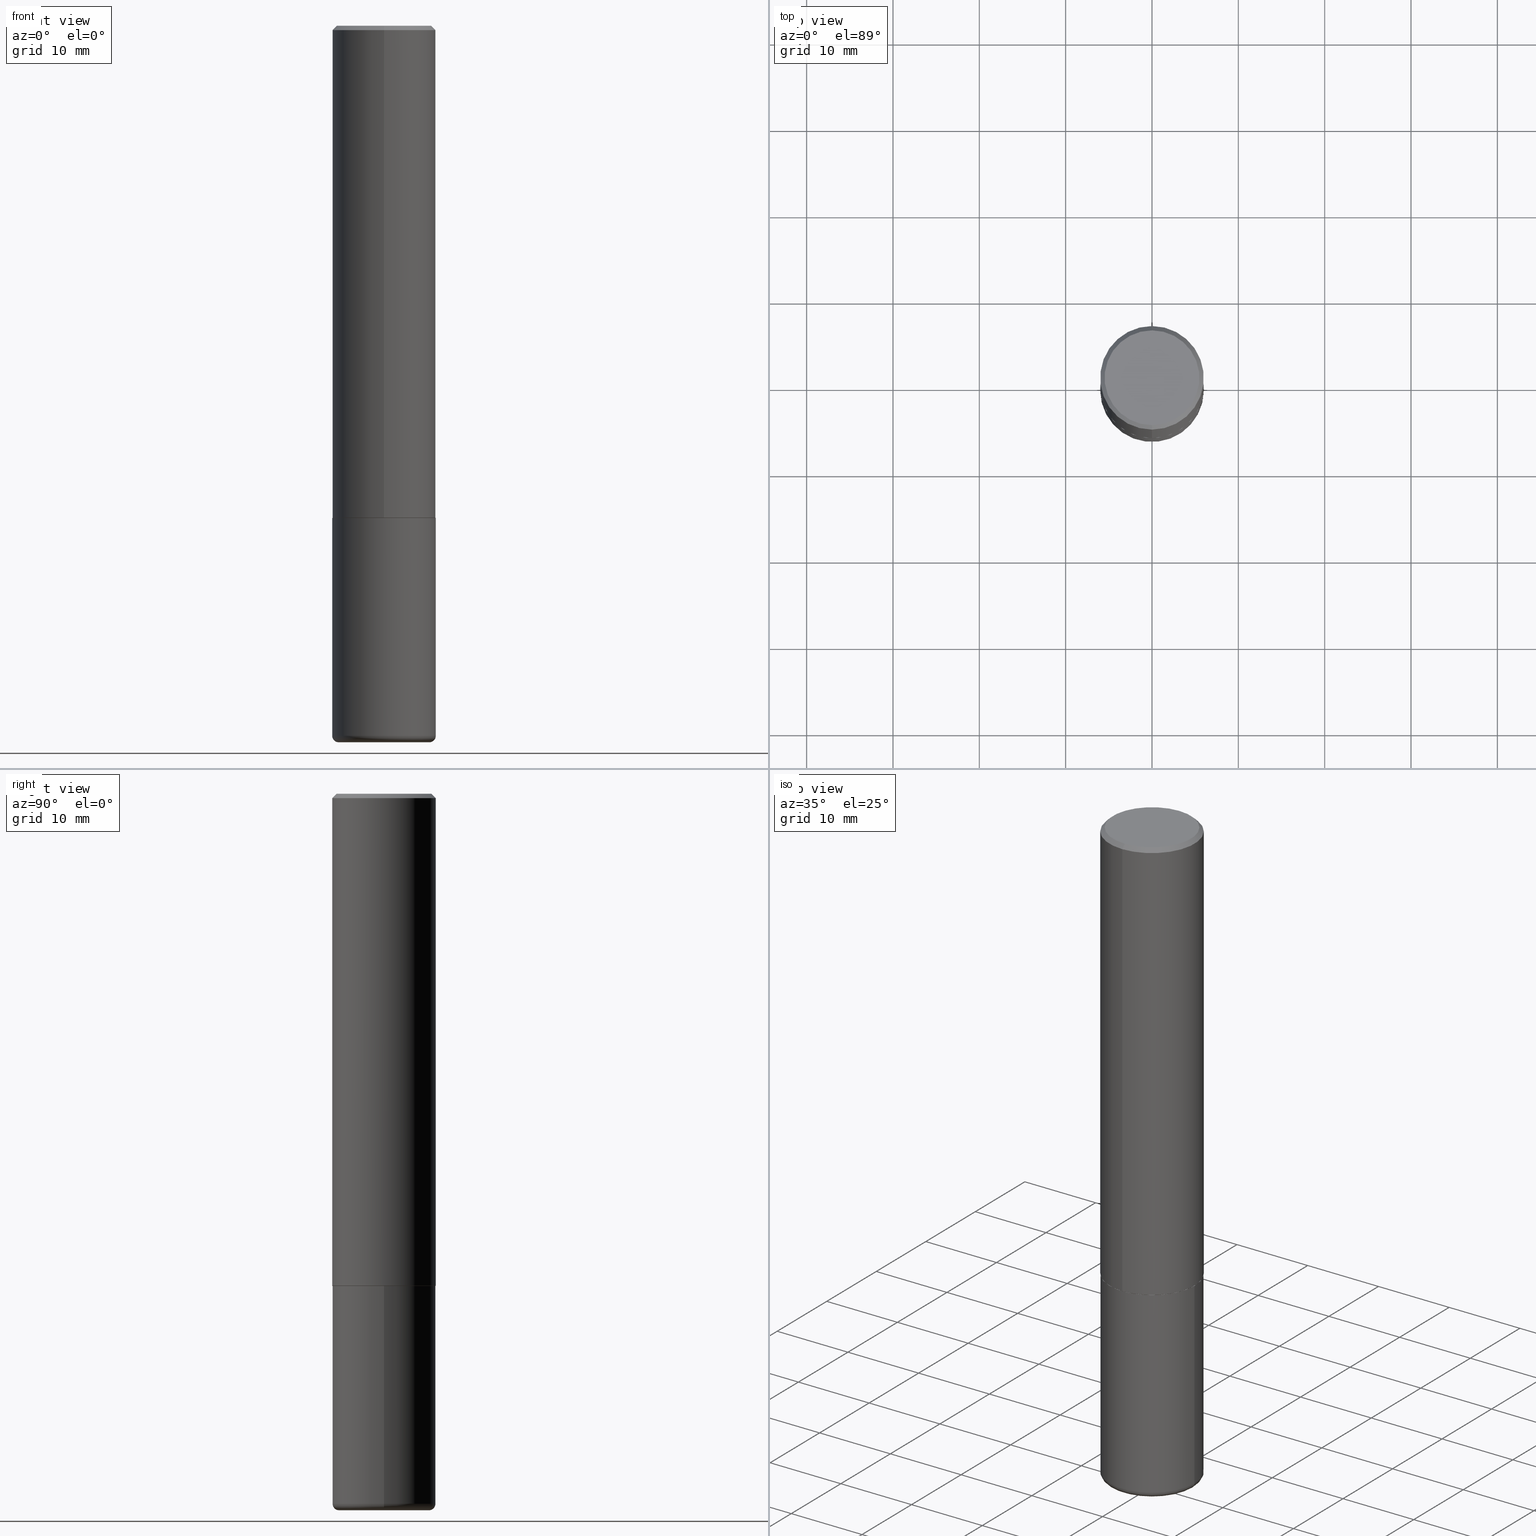
[diagram: canonical four-view strip — front | top / right | iso, engineering-drawing reading convention]
A machine part, canonical four-view strip (front | top / right | iso — engineering-drawing reading convention). The complete STEP part file that produces these views, byte-faithful:
ISO-10303-21;
HEADER;
FILE_DESCRIPTION (( 'STEP AP203' ),
    '1' );
FILE_NAME ('47126.STEP',
    '2024-03-05T21:22:19',
    ( '' ),
    ( '' ),
    'SwSTEP 2.0',
    'SolidWorks 2023',
    '' );
FILE_SCHEMA (( 'CONFIG_CONTROL_DESIGN' ));
ENDSEC;

DATA;
#1 = DIRECTION ( 'NONE',  ( -2.445468806185136877E-29, 3.491481338843145188E-15, 1.000000000000000000 ) ) ;
#2 = DIRECTION ( 'NONE',  ( -6.982962677686265922E-15, -1.000000000000000000, 3.469747663417773058E-15 ) ) ;
#3 = CARTESIAN_POINT ( 'NONE',  ( 0.2361999999999999933, -9.484609056967400443E-15, -2.244100000000000428 ) ) ;
#4 = VECTOR ( 'NONE', #1, 39.37007874015748143 ) ;
#5 = CIRCLE ( 'NONE', #233, 0.2062000000000000222 ) ;
#6 = DIRECTION ( 'NONE',  ( -2.445468806185136597E-29, 3.491481338843145583E-15, 1.000000000000000000 ) ) ;
#7 = DIRECTION ( 'NONE',  ( -1.000000000000000000, 6.982962677686265922E-15, -4.876176775795935793E-29 ) ) ;
#8 = DIRECTION ( 'NONE',  ( -2.445221809746291958E-29, 3.491835051801734702E-15, 1.000000000000000000 ) ) ;
#9 = AXIS2_PLACEMENT_3D ( 'NONE', #154, #123, #413 ) ;
#10 = DIRECTION ( 'NONE',  ( 1.000000000000000000, -6.982962677686265922E-15, 4.883557194083112340E-29 ) ) ;
#11 = CC_DESIGN_PERSON_AND_ORGANIZATION_ASSIGNMENT ( #311, #344, ( #203 ) ) ;
#12 = ORIENTED_EDGE ( 'NONE', *, *, #24, .T. ) ;
#13 = DIRECTION ( 'NONE',  ( -2.445221809746292518E-29, 3.491835051801734308E-15, 1.000000000000000000 ) ) ;
#14 = AXIS2_PLACEMENT_3D ( 'NONE', #321, #133, #96 ) ;
#15 = DIRECTION ( 'NONE',  ( -2.445468806185136597E-29, 3.491481338843145583E-15, 1.000000000000000000 ) ) ;
#16 = AXIS2_PLACEMENT_3D ( 'NONE', #51, #235, #205 ) ;
#17 = ORIENTED_EDGE ( 'NONE', *, *, #182, .F. ) ;
#18 = APPLICATION_CONTEXT ( 'configuration controlled 3d designs of mechanical parts and assemblies' ) ;
#19 = LINE ( 'NONE', #238, #417 ) ;
#20 = PRODUCT_RELATED_PRODUCT_CATEGORY ( 'detail', '', ( #237 ) ) ;
#21 = ORIENTED_EDGE ( 'NONE', *, *, #30, .T. ) ;
#22 = DATE_AND_TIME ( #187, #99 ) ;
#23 = CARTESIAN_POINT ( 'NONE',  ( 7.917694353785617077E-29, -1.130436913077245307E-14, -3.237700000000000244 ) ) ;
#24 = EDGE_CURVE ( 'NONE', #84, #252, #67, .T. ) ;
#25 = AXIS2_PLACEMENT_3D ( 'NONE', #145, #336, #334 ) ;
#26 = ORIENTED_EDGE ( 'NONE', *, *, #30, .F. ) ;
#27 = APPROVAL ( #90, 'UNSPECIFIED' ) ;
#28 =( NAMED_UNIT ( * ) PLANE_ANGLE_UNIT ( ) SI_UNIT ( $, .RADIAN. ) );
#29 = VERTEX_POINT ( 'NONE', #157 ) ;
#30 = EDGE_CURVE ( 'NONE', #84, #211, #381, .T. ) ;
#31 = DIRECTION ( 'NONE',  ( 1.000000000000000000, 0.000000000000000000, 0.000000000000000000 ) ) ;
#32 = DIRECTION ( 'NONE',  ( 1.000000000000000000, -6.982962677686262766E-15, 0.000000000000000000 ) ) ;
#33 = EDGE_CURVE ( 'NONE', #127, #252, #178, .T. ) ;
#34 = EDGE_LOOP ( 'NONE', ( #46, #400 ) ) ;
#35 = CC_DESIGN_APPROVAL ( #95, ( #395 ) ) ;
#36 = PERSON ( 'UNSPECIFIED', 'UNSPECIFIED', 'UNSPECIFIED', ('UNSPECIFIED'), ('UNSPECIFIED'), ('UNSPECIFIED') ) ;
#37 = DIRECTION ( 'NONE',  ( -2.445221809746292518E-29, 3.491835051801734308E-15, 1.000000000000000000 ) ) ;
#38 = DIRECTION ( 'NONE',  ( -2.445221809746292518E-29, 3.491835051801734308E-15, 1.000000000000000000 ) ) ;
#39 = CARTESIAN_POINT ( 'NONE',  ( 1.649375784469496920E-15, 0.2361999999999999933, -0.02000000000000087472 ) ) ;
#40 = CARTESIAN_POINT ( 'NONE',  ( -1.642392821791754699E-15, -0.2352000000000078195, -2.244099999999999095 ) ) ;
#41 = DIRECTION ( 'NONE',  ( -4.937700262165728178E-15, -0.7071067811867141062, 0.7071067811863809283 ) ) ;
#42 = DIRECTION ( 'NONE',  ( 6.982962677686265922E-15, 1.000000000000000000, -3.487819265831410167E-15 ) ) ;
#43 = EDGE_CURVE ( 'NONE', #29, #86, #322, .T. ) ;
#44 = LOCAL_TIME ( 16, 22, 19.00000000000000000, #132 ) ;
#45 = CYLINDRICAL_SURFACE ( 'NONE', #25, 0.2362000000000001598 ) ;
#46 = ORIENTED_EDGE ( 'NONE', *, *, #151, .T. ) ;
#47 = CYLINDRICAL_SURFACE ( 'NONE', #226, 0.2361999999999999933 ) ;
#48 = EDGE_LOOP ( 'NONE', ( #166, #62, #312, #146 ) ) ;
#49 = DIRECTION ( 'NONE',  ( -6.982962677686265133E-15, -1.000000000000000000, 3.484499991918703113E-15 ) ) ;
#50 = CIRCLE ( 'NONE', #201, 0.2351999999999999924 ) ;
#51 = CARTESIAN_POINT ( 'NONE',  ( 1.509716530915770323E-15, 0.2161999999999999478, -7.122113769277070896E-16 ) ) ;
#52 = EDGE_LOOP ( 'NONE', ( #236, #402, #190, #386 ) ) ;
#53 = APPROVAL_ROLE ( '' ) ;
#54 = PERSON_AND_ORGANIZATION_ROLE ( 'classification_officer' ) ;
#55 = ORIENTED_EDGE ( 'NONE', *, *, #293, .F. ) ;
#56 = CC_DESIGN_PERSON_AND_ORGANIZATION_ASSIGNMENT ( #289, #54, ( #395 ) ) ;
#57 = DATE_AND_TIME ( #282, #78 ) ;
#58 = CIRCLE ( 'NONE', #300, 0.2161999999999999478 ) ;
#59 = AXIS2_PLACEMENT_3D ( 'NONE', #75, #262, #228 ) ;
#60 = CARTESIAN_POINT ( 'NONE',  ( -1.620449627073635473E-15, -0.2362000000000001321, -0.01999999999999922673 ) ) ;
#61 = PERSON_AND_ORGANIZATION_ROLE ( 'creator' ) ;
#62 = ORIENTED_EDGE ( 'NONE', *, *, #167, .T. ) ;
#63 = EDGE_CURVE ( 'NONE', #314, #278, #189, .T. ) ;
#64 = PERSON_AND_ORGANIZATION ( #36, #129 ) ;
#65 = ORIENTED_EDGE ( 'NONE', *, *, #385, .T. ) ;
#66 = DIRECTION ( 'NONE',  ( -2.445221809746292518E-29, 3.491835051801734308E-15, 1.000000000000000000 ) ) ;
#67 = CIRCLE ( 'NONE', #9, 0.2361999999999999655 ) ;
#68 = AXIS2_PLACEMENT_3D ( 'NONE', #274, #363, #49 ) ;
#69 = DIRECTION ( 'NONE',  ( 2.438088387897960049E-29, -3.491481338843145188E-15, -1.000000000000000000 ) ) ;
#70 = EDGE_CURVE ( 'NONE', #94, #88, #58, .T. ) ;
#71 = CARTESIAN_POINT ( 'NONE',  ( -1.649375784469497117E-15, -0.2362000000000001598, 8.247714392355702416E-16 ) ) ;
#72 = PLANE ( 'NONE',  #120 ) ;
#73 = AXIS2_PLACEMENT_3D ( 'NONE', #244, #113, #42 ) ;
#74 = DIRECTION ( 'NONE',  ( -2.445221809746292518E-29, 3.491835051801734308E-15, 1.000000000000000000 ) ) ;
#75 = CARTESIAN_POINT ( 'NONE',  ( 0.000000000000000000, 0.000000000000000000, 0.000000000000000000 ) ) ;
#76 = FACE_OUTER_BOUND ( 'NONE', #34, .T. ) ;
#77 = CLOSED_SHELL ( 'NONE', ( #372, #352, #324, #193, #230, #338, #100, #382 ) ) ;
#78 = LOCAL_TIME ( 16, 22, 19.00000000000000000, #258 ) ;
#79 = DIRECTION ( 'NONE',  ( 1.000000000000000000, -6.982962677686269077E-15, 0.000000000000000000 ) ) ;
#80 = ORIENTED_EDGE ( 'NONE', *, *, #114, .F. ) ;
#81 = EDGE_CURVE ( 'NONE', #252, #84, #104, .T. ) ;
#82 = FACE_OUTER_BOUND ( 'NONE', #283, .T. ) ;
#83 = CARTESIAN_POINT ( 'NONE',  ( -1.620449627073635473E-15, -0.2362000000000001321, -0.01999999999999922673 ) ) ;
#84 = VERTEX_POINT ( 'NONE', #347 ) ;
#85 = DATE_AND_TIME ( #248, #44 ) ;
#86 = VERTEX_POINT ( 'NONE', #60 ) ;
#87 = DATE_TIME_ROLE ( 'classification_date' ) ;
#88 = VERTEX_POINT ( 'NONE', #192 ) ;
#89 = DIRECTION ( 'NONE',  ( -6.982962677686265133E-15, -1.000000000000000000, 3.484499991918703113E-15 ) ) ;
#90 = APPROVAL_STATUS ( 'not_yet_approved' ) ;
#91 = CONICAL_SURFACE ( 'NONE', #327, 0.2362000000000000766, 0.7853981633974480570 ) ;
#92 = ORIENTED_EDGE ( 'NONE', *, *, #293, .T. ) ;
#93 = APPROVAL_DATE_TIME ( #57, #27 ) ;
#94 = VERTEX_POINT ( 'NONE', #378 ) ;
#95 = APPROVAL ( #342, 'UNSPECIFIED' ) ;
#96 = DIRECTION ( 'NONE',  ( 1.000000000000000000, -6.982962677686279332E-15, 0.000000000000000000 ) ) ;
#97 = EDGE_CURVE ( 'NONE', #127, #343, #407, .T. ) ;
#98 = DIRECTION ( 'NONE',  ( -6.982962677686265922E-15, -1.000000000000000000, 3.469747663417773058E-15 ) ) ;
#99 = LOCAL_TIME ( 16, 22, 19.00000000000000000, #216 ) ;
#100 = ADVANCED_FACE ( 'NONE', ( #130 ), #72, .F. ) ;
#101 = CARTESIAN_POINT ( 'NONE',  ( -2.089361895350857775E-45, 2.983658608395124733E-31, 8.544672254365514246E-17 ) ) ;
#102 = DIRECTION ( 'NONE',  ( 1.000000000000000000, -6.982962677686269077E-15, 0.000000000000000000 ) ) ;
#103 = DIRECTION ( 'NONE',  ( 4.937700262164546464E-15, 0.7071067811865449082, -0.7071067811865501263 ) ) ;
#104 = CIRCLE ( 'NONE', #294, 0.2361999999999999655 ) ;
#105 = EDGE_CURVE ( 'NONE', #314, #188, #204, .T. ) ;
#106 = AXIS2_PLACEMENT_3D ( 'NONE', #227, #358, #102 ) ;
#107 = DIRECTION ( 'NONE',  ( 2.445221809746292518E-29, -3.491835051801734308E-15, -1.000000000000000000 ) ) ;
#108 = LENGTH_MEASURE_WITH_UNIT ( LENGTH_MEASURE( 0.02539999999999999897 ), #267 );
#109 = LINE ( 'NONE', #83, #360 ) ;
#110 = ORIENTED_EDGE ( 'NONE', *, *, #134, .T. ) ;
#111 = VECTOR ( 'NONE', #103, 39.37007874015748143 ) ;
#112 = CC_DESIGN_APPROVAL ( #27, ( #203 ) ) ;
#113 = DIRECTION ( 'NONE',  ( 2.445221809746292518E-29, -3.491835051801734308E-15, -1.000000000000000000 ) ) ;
#114 = EDGE_CURVE ( 'NONE', #278, #314, #50, .T. ) ;
#115 = EDGE_LOOP ( 'NONE', ( #125, #21, #310, #364 ) ) ;
#116 = DIRECTION ( 'NONE',  ( 5.024295867789263036E-15, 0.7071067811867189912, 0.7071067811863760433 ) ) ;
#117 = ORIENTED_EDGE ( 'NONE', *, *, #177, .F. ) ;
#118 = DIRECTION ( 'NONE',  ( -4.851104656540962697E-15, -0.7071067811865497932, -0.7071067811865452413 ) ) ;
#119 = ADVANCED_BREP_SHAPE_REPRESENTATION ( '47126', ( #280, #281, #332 ), #301 ) ;
#120 = AXIS2_PLACEMENT_3D ( 'NONE', #326, #8, #391 ) ;
#121 = APPROVAL_ROLE ( '' ) ;
#122 = AXIS2_PLACEMENT_3D ( 'NONE', #399, #208, #210 ) ;
#123 = DIRECTION ( 'NONE',  ( -2.445468806185136597E-29, 3.491481338843145583E-15, 1.000000000000000000 ) ) ;
#124 = DATE_AND_TIME ( #153, #139 ) ;
#125 = ORIENTED_EDGE ( 'NONE', *, *, #81, .T. ) ;
#126 = COORDINATED_UNIVERSAL_TIME_OFFSET ( 5, 0, .BEHIND. ) ;
#127 = VERTEX_POINT ( 'NONE', #170 ) ;
#128 = DATE_TIME_ROLE ( 'creation_date' ) ;
#129 = ORGANIZATION ( 'UNSPECIFIED', 'UNSPECIFIED', '' ) ;
#130 = FACE_OUTER_BOUND ( 'NONE', #269, .T. ) ;
#131 = CC_DESIGN_PERSON_AND_ORGANIZATION_ASSIGNMENT ( #346, #256, ( #237 ) ) ;
#132 = COORDINATED_UNIVERSAL_TIME_OFFSET ( 5, 0, .BEHIND. ) ;
#133 = DIRECTION ( 'NONE',  ( -6.982962677686266711E-15, -1.000000000000000000, 3.491481338843145583E-15 ) ) ;
#134 = EDGE_CURVE ( 'NONE', #88, #29, #261, .T. ) ;
#135 = PLANE ( 'NONE',  #196 ) ;
#136 = DESIGN_CONTEXT ( 'detailed design', #18, 'design' ) ;
#137 = CYLINDRICAL_SURFACE ( 'NONE', #59, 0.2362000000000001598 ) ;
#138 = CIRCLE ( 'NONE', #266, 0.2362000000000002709 ) ;
#139 = LOCAL_TIME ( 16, 22, 19.00000000000000000, #221 ) ;
#140 = CARTESIAN_POINT ( 'NONE',  ( -0.2361999999999999933, -7.891499259769821311E-15, -2.244100000000000428 ) ) ;
#141 = DIRECTION ( 'NONE',  ( -2.445221809746292518E-29, 3.491835051801734308E-15, 1.000000000000000000 ) ) ;
#142 = CARTESIAN_POINT ( 'NONE',  ( 4.890443619492597157E-31, -6.983670103603485970E-17, -0.02000000000000005246 ) ) ;
#143 = DIRECTION ( 'NONE',  ( -2.445468806185136597E-29, 3.491481338843145583E-15, 1.000000000000000000 ) ) ;
#144 = ORIENTED_EDGE ( 'NONE', *, *, #43, .T. ) ;
#145 = CARTESIAN_POINT ( 'NONE',  ( 0.000000000000000000, 0.000000000000000000, 0.000000000000000000 ) ) ;
#146 = ORIENTED_EDGE ( 'NONE', *, *, #33, .F. ) ;
#147 = EDGE_CURVE ( 'NONE', #340, #188, #287, .T. ) ;
#148 = PLANE ( 'NONE',  #122 ) ;
#149 = EDGE_LOOP ( 'NONE', ( #354, #160 ) ) ;
#150 = DIRECTION ( 'NONE',  ( -2.445468806185136877E-29, 3.491481338843145188E-15, 1.000000000000000000 ) ) ;
#151 = EDGE_CURVE ( 'NONE', #88, #94, #366, .T. ) ;
#152 = DIRECTION ( 'NONE',  ( -2.445221809746292518E-29, 3.491835051801734702E-15, 1.000000000000000000 ) ) ;
#153 = CALENDAR_DATE ( 2024, 5, 3 ) ;
#154 = CARTESIAN_POINT ( 'NONE',  ( 7.917694353785617077E-29, -1.130436913077245307E-14, -3.237700000000000244 ) ) ;
#155 = APPLICATION_PROTOCOL_DEFINITION ( 'international standard', 'config_control_design', 1994, #202 ) ;
#156 = AXIS2_PLACEMENT_3D ( 'NONE', #176, #143, #10 ) ;
#157 = CARTESIAN_POINT ( 'NONE',  ( 1.649375784469496920E-15, 0.2361999999999999933, -0.02000000000000087472 ) ) ;
#158 = ADVANCED_FACE ( 'NONE', ( #200 ), #356, .T. ) ;
#159 = APPROVAL_STATUS ( 'not_yet_approved' ) ;
#160 = ORIENTED_EDGE ( 'NONE', *, *, #379, .F. ) ;
#161 = APPLICATION_PROTOCOL_DEFINITION ( 'international standard', 'config_control_design', 1994, #18 ) ;
#162 = ORIENTED_EDGE ( 'NONE', *, *, #167, .F. ) ;
#163 = PERSON_AND_ORGANIZATION ( #36, #129 ) ;
#164 = AXIS2_PLACEMENT_3D ( 'NONE', #101, #141, #231 ) ;
#165 = CC_DESIGN_APPROVAL ( #319, ( #184 ) ) ;
#166 = ORIENTED_EDGE ( 'NONE', *, *, #97, .T. ) ;
#167 = EDGE_CURVE ( 'NONE', #343, #84, #394, .T. ) ;
#168 = DIRECTION ( 'NONE',  ( -2.445221809746292518E-29, 3.491835051801734308E-15, 1.000000000000000000 ) ) ;
#169 = LINE ( 'NONE', #71, #219 ) ;
#170 = CARTESIAN_POINT ( 'NONE',  ( 0.2062000000000000222, -1.284900047507665465E-14, -3.267700000000000049 ) ) ;
#171 = AXIS2_PLACEMENT_3D ( 'NONE', #175, #396, #291 ) ;
#172 = LOCAL_TIME ( 16, 22, 19.00000000000000000, #126 ) ;
#173 = CARTESIAN_POINT ( 'NONE',  ( 5.484877041441908919E-29, -7.832535204696471708E-15, -2.243100000000000094 ) ) ;
#174 = CC_DESIGN_PERSON_AND_ORGANIZATION_ASSIGNMENT ( #163, #194, ( #184 ) ) ;
#175 = CARTESIAN_POINT ( 'NONE',  ( 7.917694353785617077E-29, -1.130436913077245307E-14, -3.237700000000000244 ) ) ;
#176 = CARTESIAN_POINT ( 'NONE',  ( 7.917694353785617077E-29, -1.130436913077245307E-14, -3.237700000000000244 ) ) ;
#177 = EDGE_CURVE ( 'NONE', #188, #86, #169, .T. ) ;
#178 = CIRCLE ( 'NONE', #14, 0.02999999999999995379 ) ;
#179 = AXIS2_PLACEMENT_3D ( 'NONE', #331, #13, #183 ) ;
#180 = FACE_OUTER_BOUND ( 'NONE', #337, .T. ) ;
#181 = CARTESIAN_POINT ( 'NONE',  ( 0.000000000000000000, 0.000000000000000000, 0.000000000000000000 ) ) ;
#182 = EDGE_CURVE ( 'NONE', #86, #29, #254, .T. ) ;
#183 = DIRECTION ( 'NONE',  ( -6.982962677686265133E-15, -1.000000000000000000, 3.484499991918703113E-15 ) ) ;
#184 = PRODUCT_DEFINITION_FORMATION_WITH_SPECIFIED_SOURCE ( 'ANY', '', #237, .NOT_KNOWN. ) ;
#185 = CARTESIAN_POINT ( 'NONE',  ( 0.2361999999999999933, -1.649375784469496131E-15, 1.151752954443000088E-29 ) ) ;
#186 = ORIENTED_EDGE ( 'NONE', *, *, #63, .T. ) ;
#187 = CALENDAR_DATE ( 2024, 5, 3 ) ;
#188 = VERTEX_POINT ( 'NONE', #264 ) ;
#189 = CIRCLE ( 'NONE', #239, 0.2351999999999999924 ) ;
#190 = ORIENTED_EDGE ( 'NONE', *, *, #177, .T. ) ;
#191 = ADVANCED_FACE ( 'NONE', ( #234 ), #325, .T. ) ;
#192 = CARTESIAN_POINT ( 'NONE',  ( 1.579546157692633621E-15, 0.2161999999999999478, -6.694880156558795861E-16 ) ) ;
#193 = ADVANCED_FACE ( 'NONE', ( #296 ), #91, .T. ) ;
#194 = PERSON_AND_ORGANIZATION_ROLE ( 'design_supplier' ) ;
#195 = CARTESIAN_POINT ( 'NONE',  ( -0.2361999999999999933, 1.678301941865356591E-15, -1.161852468318208757E-29 ) ) ;
#196 = AXIS2_PLACEMENT_3D ( 'NONE', #260, #69, #7 ) ;
#197 = DIRECTION ( 'NONE',  ( -6.982962677686265922E-15, -1.000000000000000000, 3.491835051801733913E-15 ) ) ;
#198 = DIMENSIONAL_EXPONENTS ( 1.000000000000000000, 0.000000000000000000, 0.000000000000000000, 0.000000000000000000, 0.000000000000000000, 0.000000000000000000, 0.000000000000000000 ) ;
#199 = DIRECTION ( 'NONE',  ( 6.982962677686265922E-15, 1.000000000000000000, -3.487819265831410167E-15 ) ) ;
#200 = FACE_OUTER_BOUND ( 'NONE', #48, .T. ) ;
#201 = AXIS2_PLACEMENT_3D ( 'NONE', #229, #38, #328 ) ;
#202 = APPLICATION_CONTEXT ( 'configuration controlled 3d designs of mechanical parts and assemblies' ) ;
#203 = PRODUCT_DEFINITION ( 'UNKNOWN', '', #184, #136 ) ;
#204 = LINE ( 'NONE', #40, #374 ) ;
#205 = DIRECTION ( 'NONE',  ( 6.982962677686265922E-15, 1.000000000000000000, -3.491835051801734702E-15 ) ) ;
#206 = ORIENTED_EDGE ( 'NONE', *, *, #387, .T. ) ;
#207 = AXIS2_PLACEMENT_3D ( 'NONE', #272, #270, #79 ) ;
#208 = DIRECTION ( 'NONE',  ( 2.438088387897960049E-29, -3.491481338843145188E-15, -1.000000000000000000 ) ) ;
#209 = EDGE_LOOP ( 'NONE', ( #186, #92, #257, #345 ) ) ;
#210 = DIRECTION ( 'NONE',  ( -1.000000000000000000, 6.982962677686265922E-15, -4.876176775795935793E-29 ) ) ;
#211 = VERTEX_POINT ( 'NONE', #140 ) ;
#212 = LINE ( 'NONE', #307, #255 ) ;
#213 = APPROVAL_PERSON_ORGANIZATION ( #214, #95, #53 ) ;
#214 = PERSON_AND_ORGANIZATION ( #36, #129 ) ;
#215 = VERTEX_POINT ( 'NONE', #3 ) ;
#216 = COORDINATED_UNIVERSAL_TIME_OFFSET ( 5, 0, .BEHIND. ) ;
#217 = ORIENTED_EDGE ( 'NONE', *, *, #114, .T. ) ;
#218 = DIRECTION ( 'NONE',  ( -2.445468806185136597E-29, 3.491481338843145583E-15, 1.000000000000000000 ) ) ;
#219 = VECTOR ( 'NONE', #297, 39.37007874015748143 ) ;
#220 = TOROIDAL_SURFACE ( 'NONE', #156, 0.2062000000000000222, 0.02999999999999995379 ) ;
#221 = COORDINATED_UNIVERSAL_TIME_OFFSET ( 5, 0, .BEHIND. ) ;
#222 = CARTESIAN_POINT ( 'NONE',  ( -2.089361895350857775E-45, 2.983658608395124733E-31, 8.544672254365514246E-17 ) ) ;
#223 = ORIENTED_EDGE ( 'NONE', *, *, #70, .F. ) ;
#224 = CC_DESIGN_DATE_AND_TIME_ASSIGNMENT ( #124, #128, ( #203 ) ) ;
#225 = DIRECTION ( 'NONE',  ( -6.982962677686265922E-15, -1.000000000000000000, 3.487819265831410167E-15 ) ) ;
#226 = AXIS2_PLACEMENT_3D ( 'NONE', #181, #404, #302 ) ;
#227 = CARTESIAN_POINT ( 'NONE',  ( 5.487876547960065873E-29, -7.835233272497903917E-15, -2.244100000000000428 ) ) ;
#228 = DIRECTION ( 'NONE',  ( -6.982962677686265922E-15, -1.000000000000000000, 3.491835051801734308E-15 ) ) ;
#229 = CARTESIAN_POINT ( 'NONE',  ( 5.487322263251655570E-29, -7.836027039748271518E-15, -2.244099999999999984 ) ) ;
#230 = ADVANCED_FACE ( 'NONE', ( #361 ), #137, .T. ) ;
#231 = DIRECTION ( 'NONE',  ( -6.982962677686265922E-15, -1.000000000000000000, 3.491835051801733913E-15 ) ) ;
#232 = AXIS2_PLACEMENT_3D ( 'NONE', #415, #318, #32 ) ;
#233 = AXIS2_PLACEMENT_3D ( 'NONE', #397, #15, #370 ) ;
#234 = FACE_OUTER_BOUND ( 'NONE', #243, .T. ) ;
#235 = DIRECTION ( 'NONE',  ( 2.445221809746291958E-29, -3.491835051801734702E-15, -1.000000000000000000 ) ) ;
#236 = ORIENTED_EDGE ( 'NONE', *, *, #387, .F. ) ;
#237 = PRODUCT ( '47126', '47126', '', ( #316 ) ) ;
#238 = CARTESIAN_POINT ( 'NONE',  ( 1.678301941865357577E-15, 0.2362000000000001598, -8.247714392355702416E-16 ) ) ;
#239 = AXIS2_PLACEMENT_3D ( 'NONE', #355, #380, #89 ) ;
#240 = ORIENTED_EDGE ( 'NONE', *, *, #275, .T. ) ;
#241 = CONICAL_SURFACE ( 'NONE', #179, 0.2351999999999999924, 0.7853981633976873100 ) ;
#242 = CARTESIAN_POINT ( 'NONE',  ( -0.2062000000000000222, -9.785020819353759273E-15, -3.267700000000000049 ) ) ;
#243 = EDGE_LOOP ( 'NONE', ( #26, #12, #65, #249 ) ) ;
#244 = CARTESIAN_POINT ( 'NONE',  ( 4.890443619492597157E-31, -6.983670103603485970E-17, -0.02000000000000005246 ) ) ;
#245 = ORIENTED_EDGE ( 'NONE', *, *, #24, .F. ) ;
#246 = CARTESIAN_POINT ( 'NONE',  ( 1.678301941865385779E-15, 0.2361999999999924715, -2.243100000000000982 ) ) ;
#247 = EDGE_CURVE ( 'NONE', #188, #340, #138, .T. ) ;
#248 = CALENDAR_DATE ( 2024, 5, 3 ) ;
#249 = ORIENTED_EDGE ( 'NONE', *, *, #306, .F. ) ;
#250 = ADVANCED_FACE ( 'NONE', ( #392 ), #135, .T. ) ;
#251 = CARTESIAN_POINT ( 'NONE',  ( 0.000000000000000000, 0.000000000000000000, 0.000000000000000000 ) ) ;
#252 = VERTEX_POINT ( 'NONE', #388 ) ;
#253 = ORIENTED_EDGE ( 'NONE', *, *, #151, .F. ) ;
#254 = CIRCLE ( 'NONE', #279, 0.2362000000000000766 ) ;
#255 = VECTOR ( 'NONE', #116, 39.37007874015748143 ) ;
#256 = PERSON_AND_ORGANIZATION_ROLE ( 'design_owner' ) ;
#257 = ORIENTED_EDGE ( 'NONE', *, *, #247, .F. ) ;
#258 = COORDINATED_UNIVERSAL_TIME_OFFSET ( 5, 0, .BEHIND. ) ;
#259 = ORIENTED_EDGE ( 'NONE', *, *, #33, .T. ) ;
#260 = CARTESIAN_POINT ( 'NONE',  ( 7.991058417971171713E-29, -1.140911357093774644E-14, -3.267700000000000049 ) ) ;
#261 = LINE ( 'NONE', #39, #111 ) ;
#262 = DIRECTION ( 'NONE',  ( -2.445221809746292518E-29, 3.491835051801734308E-15, 1.000000000000000000 ) ) ;
#263 = CARTESIAN_POINT ( 'NONE',  ( 1.674749228186611702E-15, 0.2351999999999921653, -2.244100000000000872 ) ) ;
#264 = CARTESIAN_POINT ( 'NONE',  ( -1.649375784469443080E-15, -0.2362000000000080979, -2.243099999999999206 ) ) ;
#265 = CLOSED_SHELL ( 'NONE', ( #410, #158, #298, #191, #416, #250 ) ) ;
#266 = AXIS2_PLACEMENT_3D ( 'NONE', #323, #37, #2 ) ;
#267 =( LENGTH_UNIT ( ) NAMED_UNIT ( * ) SI_UNIT ( $, .METRE. ) );
#268 = PRODUCT_DEFINITION_SHAPE ( 'NONE', 'NONE',  #203 ) ;
#269 = EDGE_LOOP ( 'NONE', ( #405, #80 ) ) ;
#270 = DIRECTION ( 'NONE',  ( -2.445468806185136597E-29, 3.491481338843145583E-15, 1.000000000000000000 ) ) ;
#271 = ORIENTED_EDGE ( 'NONE', *, *, #147, .F. ) ;
#272 = CARTESIAN_POINT ( 'NONE',  ( 5.487876547960065873E-29, -7.835233272497903917E-15, -2.244100000000000428 ) ) ;
#273 = ORIENTED_EDGE ( 'NONE', *, *, #105, .T. ) ;
#274 = CARTESIAN_POINT ( 'NONE',  ( 5.487322263251655570E-29, -7.836027039748271518E-15, -2.244099999999999984 ) ) ;
#275 = EDGE_CURVE ( 'NONE', #215, #211, #308, .T. ) ;
#276 = FACE_OUTER_BOUND ( 'NONE', #115, .T. ) ;
#277 = APPROVAL_DATE_TIME ( #22, #95 ) ;
#278 = VERTEX_POINT ( 'NONE', #263 ) ;
#279 = AXIS2_PLACEMENT_3D ( 'NONE', #142, #74, #357 ) ;
#280 = MANIFOLD_SOLID_BREP ( 'Body-Move/Copy2[1]', #265 ) ;
#281 = MANIFOLD_SOLID_BREP ( 'Body-Move/Copy2[2]', #77 ) ;
#282 = CALENDAR_DATE ( 2024, 5, 3 ) ;
#283 = EDGE_LOOP ( 'NONE', ( #55, #217, #273, #271 ) ) ;
#284 = DIRECTION ( 'NONE',  ( 0.000000000000000000, 0.000000000000000000, 1.000000000000000000 ) ) ;
#285 = EDGE_LOOP ( 'NONE', ( #303, #253, #110, #144 ) ) ;
#286 = EDGE_LOOP ( 'NONE', ( #162, #371, #259, #245 ) ) ;
#287 = CIRCLE ( 'NONE', #348, 0.2362000000000002709 ) ;
#288 = CIRCLE ( 'NONE', #207, 0.2361999999999999933 ) ;
#289 = PERSON_AND_ORGANIZATION ( #36, #129 ) ;
#290 = ORIENTED_EDGE ( 'NONE', *, *, #182, .T. ) ;
#291 = DIRECTION ( 'NONE',  ( 1.000000000000000000, -6.982962677686265922E-15, 4.883557194083112340E-29 ) ) ;
#292 = CARTESIAN_POINT ( 'NONE',  ( 0.000000000000000000, 0.000000000000000000, 0.000000000000000000 ) ) ;
#293 = EDGE_CURVE ( 'NONE', #278, #340, #212, .T. ) ;
#294 = AXIS2_PLACEMENT_3D ( 'NONE', #23, #218, #351 ) ;
#295 = CARTESIAN_POINT ( 'NONE',  ( 4.890443619492597157E-31, -6.983670103603485970E-17, -0.02000000000000005246 ) ) ;
#296 = FACE_OUTER_BOUND ( 'NONE', #285, .T. ) ;
#297 = DIRECTION ( 'NONE',  ( -2.445221809746292518E-29, 3.491835051801734702E-15, 1.000000000000000000 ) ) ;
#298 = ADVANCED_FACE ( 'NONE', ( #309 ), #148, .F. ) ;
#299 = LINE ( 'NONE', #185, #409 ) ;
#300 = AXIS2_PLACEMENT_3D ( 'NONE', #222, #66, #197 ) ;
#301 =( GEOMETRIC_REPRESENTATION_CONTEXT ( 3 ) GLOBAL_UNCERTAINTY_ASSIGNED_CONTEXT ( ( #365 ) ) GLOBAL_UNIT_ASSIGNED_CONTEXT ( ( #418, #28, #313 ) ) REPRESENTATION_CONTEXT ( 'NONE', 'WORKASPACE' ) );
#302 = DIRECTION ( 'NONE',  ( 1.000000000000000000, -6.982962677686266711E-15, 4.876176775795936353E-29 ) ) ;
#303 = ORIENTED_EDGE ( 'NONE', *, *, #304, .F. ) ;
#304 = EDGE_CURVE ( 'NONE', #94, #86, #109, .T. ) ;
#305 = FACE_OUTER_BOUND ( 'NONE', #209, .T. ) ;
#306 = EDGE_CURVE ( 'NONE', #211, #215, #288, .T. ) ;
#307 = CARTESIAN_POINT ( 'NONE',  ( 1.671196514507810212E-15, 0.2351999999999921653, -2.244100000000000872 ) ) ;
#308 = CIRCLE ( 'NONE', #106, 0.2361999999999999933 ) ;
#309 = FACE_OUTER_BOUND ( 'NONE', #317, .T. ) ;
#310 = ORIENTED_EDGE ( 'NONE', *, *, #275, .F. ) ;
#311 = PERSON_AND_ORGANIZATION ( #36, #129 ) ;
#312 = ORIENTED_EDGE ( 'NONE', *, *, #81, .F. ) ;
#313 =( NAMED_UNIT ( * ) SI_UNIT ( $, .STERADIAN. ) SOLID_ANGLE_UNIT ( ) );
#314 = VERTEX_POINT ( 'NONE', #401 ) ;
#315 = AXIS2_PLACEMENT_3D ( 'NONE', #292, #6, #359 ) ;
#316 = MECHANICAL_CONTEXT ( 'NONE', #202, 'mechanical' ) ;
#317 = EDGE_LOOP ( 'NONE', ( #240, #333 ) ) ;
#318 = DIRECTION ( 'NONE',  ( -2.445468806185136597E-29, 3.491481338843145583E-15, 1.000000000000000000 ) ) ;
#319 = APPROVAL ( #159, 'UNSPECIFIED' ) ;
#320 = SECURITY_CLASSIFICATION_LEVEL ( 'unclassified' ) ;
#321 = CARTESIAN_POINT ( 'NONE',  ( 0.2062000000000000222, -1.274425603491136128E-14, -3.237700000000000244 ) ) ;
#322 = CIRCLE ( 'NONE', #330, 0.2362000000000000766 ) ;
#323 = CARTESIAN_POINT ( 'NONE',  ( 5.484877041441908919E-29, -7.832535204696471708E-15, -2.243100000000000094 ) ) ;
#324 = ADVANCED_FACE ( 'NONE', ( #180 ), #349, .T. ) ;
#325 = CYLINDRICAL_SURFACE ( 'NONE', #315, 0.2361999999999999933 ) ;
#326 = CARTESIAN_POINT ( 'NONE',  ( 5.487322263251655570E-29, -7.836027039748273096E-15, -2.244100000000000428 ) ) ;
#327 = AXIS2_PLACEMENT_3D ( 'NONE', #295, #107, #199 ) ;
#328 = DIRECTION ( 'NONE',  ( -6.982962677686265133E-15, -1.000000000000000000, 3.484499991918703113E-15 ) ) ;
#329 = CARTESIAN_POINT ( 'NONE',  ( -0.2062000000000000222, -9.839230009635125344E-15, -3.237700000000000244 ) ) ;
#330 = AXIS2_PLACEMENT_3D ( 'NONE', #411, #408, #225 ) ;
#331 = CARTESIAN_POINT ( 'NONE',  ( 5.487322263251655570E-29, -7.836027039748271518E-15, -2.244099999999999984 ) ) ;
#332 = AXIS2_PLACEMENT_3D ( 'NONE', #251, #284, #31 ) ;
#333 = ORIENTED_EDGE ( 'NONE', *, *, #306, .T. ) ;
#334 = DIRECTION ( 'NONE',  ( -6.982962677686265922E-15, -1.000000000000000000, 3.491835051801734308E-15 ) ) ;
#335 = ORIENTED_EDGE ( 'NONE', *, *, #247, .T. ) ;
#336 = DIRECTION ( 'NONE',  ( -2.445221809746292518E-29, 3.491835051801734308E-15, 1.000000000000000000 ) ) ;
#337 = EDGE_LOOP ( 'NONE', ( #223, #368, #290, #384 ) ) ;
#338 = ADVANCED_FACE ( 'NONE', ( #82 ), #389, .T. ) ;
#339 = PLANE ( 'NONE',  #16 ) ;
#340 = VERTEX_POINT ( 'NONE', #246 ) ;
#341 = APPROVAL_PERSON_ORGANIZATION ( #383, #319, #412 ) ;
#342 = APPROVAL_STATUS ( 'not_yet_approved' ) ;
#343 = VERTEX_POINT ( 'NONE', #242 ) ;
#344 = PERSON_AND_ORGANIZATION_ROLE ( 'creator' ) ;
#345 = ORIENTED_EDGE ( 'NONE', *, *, #105, .F. ) ;
#346 = PERSON_AND_ORGANIZATION ( #36, #129 ) ;
#347 = CARTESIAN_POINT ( 'NONE',  ( -0.2361999999999999655, -9.626067188907095099E-15, -3.237700000000000244 ) ) ;
#348 = AXIS2_PLACEMENT_3D ( 'NONE', #173, #168, #98 ) ;
#349 = CONICAL_SURFACE ( 'NONE', #73, 0.2362000000000000766, 0.7853981633974480570 ) ;
#350 = APPROVAL_DATE_TIME ( #353, #319 ) ;
#351 = DIRECTION ( 'NONE',  ( 1.000000000000000000, -6.982962677686265922E-15, 0.000000000000000000 ) ) ;
#352 = ADVANCED_FACE ( 'NONE', ( #369 ), #45, .T. ) ;
#353 = DATE_AND_TIME ( #377, #172 ) ;
#354 = ORIENTED_EDGE ( 'NONE', *, *, #97, .F. ) ;
#355 = CARTESIAN_POINT ( 'NONE',  ( 5.487322263251655570E-29, -7.836027039748271518E-15, -2.244099999999999984 ) ) ;
#356 = TOROIDAL_SURFACE ( 'NONE', #171, 0.2062000000000000222, 0.02999999999999995379 ) ;
#357 = DIRECTION ( 'NONE',  ( -6.982962677686265922E-15, -1.000000000000000000, 3.487819265831410167E-15 ) ) ;
#358 = DIRECTION ( 'NONE',  ( -2.445468806185136597E-29, 3.491481338843145583E-15, 1.000000000000000000 ) ) ;
#359 = DIRECTION ( 'NONE',  ( 1.000000000000000000, -6.982962677686266711E-15, 4.876176775795936353E-29 ) ) ;
#360 = VECTOR ( 'NONE', #118, 39.37007874015748143 ) ;
#361 = FACE_OUTER_BOUND ( 'NONE', #52, .T. ) ;
#362 = DIRECTION ( 'NONE',  ( 7.105427357601001859E-15, 1.000000000000000000, -3.491481338843145583E-15 ) ) ;
#363 = DIRECTION ( 'NONE',  ( -2.445221809746292518E-29, 3.491835051801734308E-15, 1.000000000000000000 ) ) ;
#364 = ORIENTED_EDGE ( 'NONE', *, *, #385, .F. ) ;
#365 = UNCERTAINTY_MEASURE_WITH_UNIT (LENGTH_MEASURE( 1.000000000000000082E-05 ), #418, 'distance_accuracy_value', 'NONE');
#366 = CIRCLE ( 'NONE', #164, 0.2161999999999999478 ) ;
#367 = CC_DESIGN_PERSON_AND_ORGANIZATION_ASSIGNMENT ( #64, #61, ( #184 ) ) ;
#368 = ORIENTED_EDGE ( 'NONE', *, *, #304, .T. ) ;
#369 = FACE_OUTER_BOUND ( 'NONE', #375, .T. ) ;
#370 = DIRECTION ( 'NONE',  ( 1.000000000000000000, -6.982962677686262766E-15, 0.000000000000000000 ) ) ;
#371 = ORIENTED_EDGE ( 'NONE', *, *, #379, .T. ) ;
#372 = ADVANCED_FACE ( 'NONE', ( #305 ), #241, .T. ) ;
#373 = FACE_OUTER_BOUND ( 'NONE', #286, .T. ) ;
#374 = VECTOR ( 'NONE', #41, 39.37007874015748143 ) ;
#375 = EDGE_LOOP ( 'NONE', ( #335, #206, #17, #117 ) ) ;
#376 = APPROVAL_PERSON_ORGANIZATION ( #414, #27, #121 ) ;
#377 = CALENDAR_DATE ( 2024, 5, 3 ) ;
#378 = CARTESIAN_POINT ( 'NONE',  ( -1.551844647095920142E-15, -0.2161999999999999478, 8.403814607431897971E-16 ) ) ;
#379 = EDGE_CURVE ( 'NONE', #343, #127, #5, .T. ) ;
#380 = DIRECTION ( 'NONE',  ( -2.445221809746292518E-29, 3.491835051801734308E-15, 1.000000000000000000 ) ) ;
#381 = LINE ( 'NONE', #195, #4 ) ;
#382 = ADVANCED_FACE ( 'NONE', ( #76 ), #339, .F. ) ;
#383 = PERSON_AND_ORGANIZATION ( #36, #129 ) ;
#384 = ORIENTED_EDGE ( 'NONE', *, *, #134, .F. ) ;
#385 = EDGE_CURVE ( 'NONE', #252, #215, #299, .T. ) ;
#386 = ORIENTED_EDGE ( 'NONE', *, *, #43, .F. ) ;
#387 = EDGE_CURVE ( 'NONE', #340, #29, #19, .T. ) ;
#388 = CARTESIAN_POINT ( 'NONE',  ( 0.2361999999999999655, -1.295374491524194802E-14, -3.237700000000000244 ) ) ;
#389 = CONICAL_SURFACE ( 'NONE', #68, 0.2351999999999999924, 0.7853981633976873100 ) ;
#390 = CC_DESIGN_SECURITY_CLASSIFICATION ( #395, ( #184 ) ) ;
#391 = DIRECTION ( 'NONE',  ( -6.982962677686265922E-15, -1.000000000000000000, 3.491835051801734702E-15 ) ) ;
#392 = FACE_OUTER_BOUND ( 'NONE', #149, .T. ) ;
#393 = DIRECTION ( 'NONE',  ( -1.000000000000000000, 7.105427357601001859E-15, 0.000000000000000000 ) ) ;
#394 = CIRCLE ( 'NONE', #398, 0.02999999999999995379 ) ;
#395 = SECURITY_CLASSIFICATION ( '', '', #320 ) ;
#396 = DIRECTION ( 'NONE',  ( -2.445468806185136597E-29, 3.491481338843145583E-15, 1.000000000000000000 ) ) ;
#397 = CARTESIAN_POINT ( 'NONE',  ( 7.991058417971171713E-29, -1.140911357093774644E-14, -3.267700000000000049 ) ) ;
#398 = AXIS2_PLACEMENT_3D ( 'NONE', #329, #362, #393 ) ;
#399 = CARTESIAN_POINT ( 'NONE',  ( 5.487876547960065873E-29, -7.835233272497903917E-15, -2.244100000000000428 ) ) ;
#400 = ORIENTED_EDGE ( 'NONE', *, *, #70, .T. ) ;
#401 = CARTESIAN_POINT ( 'NONE',  ( -1.642392821791754699E-15, -0.2352000000000078195, -2.244099999999999095 ) ) ;
#402 = ORIENTED_EDGE ( 'NONE', *, *, #147, .T. ) ;
#403 = CC_DESIGN_DATE_AND_TIME_ASSIGNMENT ( #85, #87, ( #395 ) ) ;
#404 = DIRECTION ( 'NONE',  ( -2.445468806185136597E-29, 3.491481338843145583E-15, 1.000000000000000000 ) ) ;
#405 = ORIENTED_EDGE ( 'NONE', *, *, #63, .F. ) ;
#406 = SHAPE_DEFINITION_REPRESENTATION ( #268, #119 ) ;
#407 = CIRCLE ( 'NONE', #232, 0.2062000000000000222 ) ;
#408 = DIRECTION ( 'NONE',  ( -2.445221809746292518E-29, 3.491835051801734308E-15, 1.000000000000000000 ) ) ;
#409 = VECTOR ( 'NONE', #150, 39.37007874015748143 ) ;
#410 = ADVANCED_FACE ( 'NONE', ( #276 ), #47, .T. ) ;
#411 = CARTESIAN_POINT ( 'NONE',  ( 4.890443619492597157E-31, -6.983670103603485970E-17, -0.02000000000000005246 ) ) ;
#412 = APPROVAL_ROLE ( '' ) ;
#413 = DIRECTION ( 'NONE',  ( 1.000000000000000000, -6.982962677686265922E-15, 0.000000000000000000 ) ) ;
#414 = PERSON_AND_ORGANIZATION ( #36, #129 ) ;
#415 = CARTESIAN_POINT ( 'NONE',  ( 7.991058417971171713E-29, -1.140911357093774644E-14, -3.267700000000000049 ) ) ;
#416 = ADVANCED_FACE ( 'NONE', ( #373 ), #220, .T. ) ;
#417 = VECTOR ( 'NONE', #152, 39.37007874015748143 ) ;
#418 =( CONVERSION_BASED_UNIT ( 'INCH', #108 ) LENGTH_UNIT ( ) NAMED_UNIT ( #198 ) );
ENDSEC;
END-ISO-10303-21;
